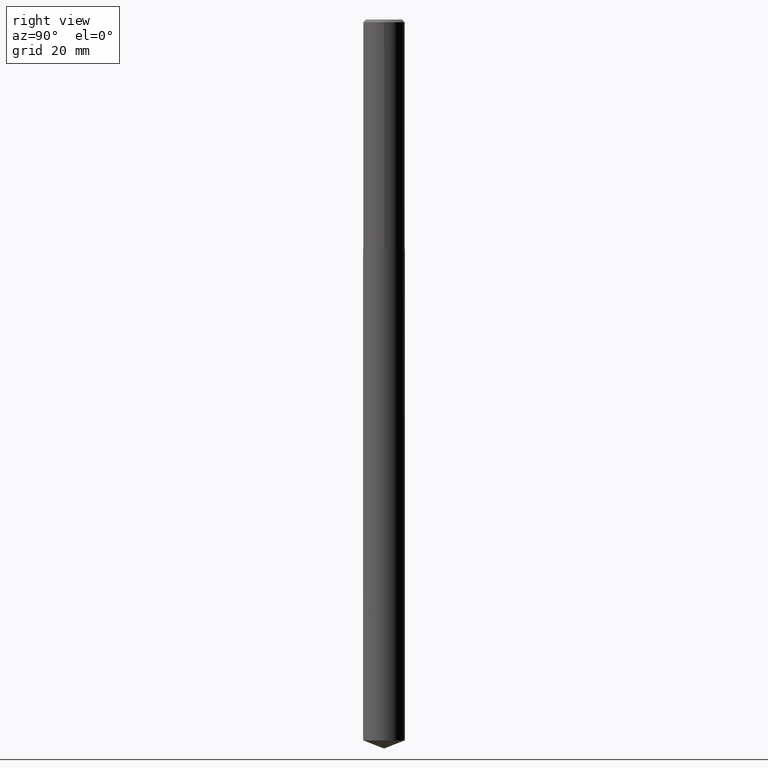
[diagram: clean part render]
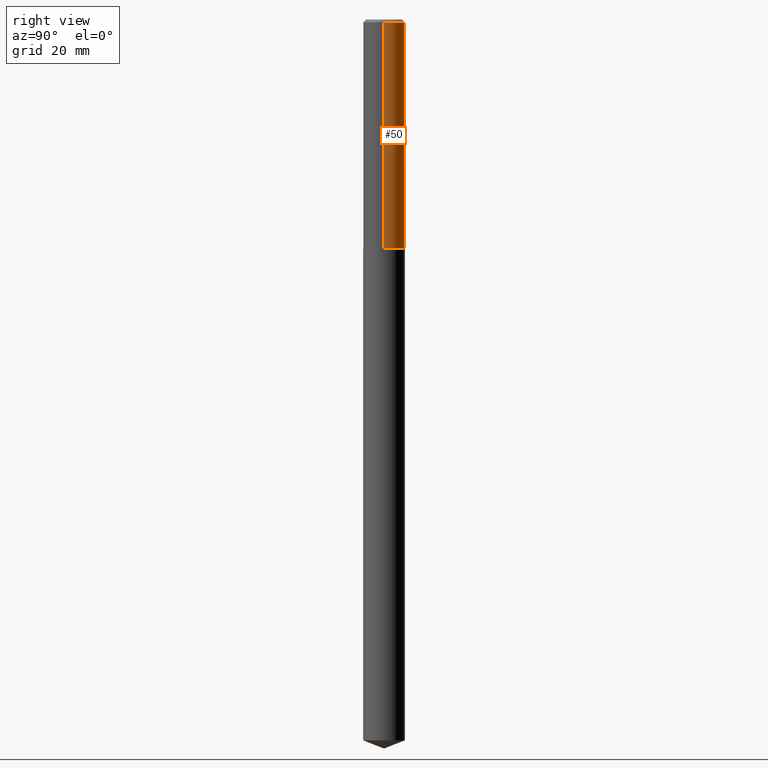
[diagram: same view with one face highlighted and labeled with its STEP entity id]
A machine part, right view. The second image highlights one B-rep face of the part: STEP entity #50.
In plain terms, the highlighted cylindrical surface (edge-blend (fillet) strip) has radius 5.9995 mm, axis along (-0, 0, 1).
Its self-contained STEP definition (entity closure, byte-faithful):
#1 = ORIENTED_EDGE ( 'NONE', *, *, #39, .F. ) ;
#7 = DIRECTION ( 'NONE',  ( 1.000000000000000000, -6.982962677686266711E-15, 0.000000000000000000 ) ) ;
#11 = EDGE_CURVE ( 'NONE', #272, #207, #186, .T. ) ;
#14 = AXIS2_PLACEMENT_3D ( 'NONE', #161, #221, #77 ) ;
#39 = EDGE_CURVE ( 'NONE', #310, #272, #223, .T. ) ;
#45 = VECTOR ( 'NONE', #193, 39.37007874015748143 ) ;
#50 = ADVANCED_FACE ( 'NONE', ( #218 ), #308, .T. ) ;
#52 = CIRCLE ( 'NONE', #361, 0.2362000000000003264 ) ;
#61 = EDGE_LOOP ( 'NONE', ( #360, #94, #242, #1 ) ) ;
#66 = VECTOR ( 'NONE', #351, 39.37007874015748143 ) ;
#77 = DIRECTION ( 'NONE',  ( 1.000000000000000000, -6.982962677686266711E-15, 4.876176775795936353E-29 ) ) ;
#79 = CARTESIAN_POINT ( 'NONE',  ( -0.2362000000000001598, 1.678301941865357775E-15, -1.161852468318209598E-29 ) ) ;
#94 = ORIENTED_EDGE ( 'NONE', *, *, #220, .T. ) ;
#103 = DIRECTION ( 'NONE',  ( -2.445468806185136597E-29, 3.491481338843145583E-15, 1.000000000000000000 ) ) ;
#110 = EDGE_CURVE ( 'NONE', #310, #265, #52, .T. ) ;
#140 = CARTESIAN_POINT ( 'NONE',  ( 0.2361999999999999933, -1.758484576308345231E-15, -0.03125000000000021511 ) ) ;
#161 = CARTESIAN_POINT ( 'NONE',  ( 0.000000000000000000, 0.000000000000000000, 0.000000000000000000 ) ) ;
#167 = CARTESIAN_POINT ( 'NONE',  ( -0.2361999999999999933, -2.911861287278254072E-15, -0.03125000000000021511 ) ) ;
#168 = AXIS2_PLACEMENT_3D ( 'NONE', #372, #305, #7 ) ;
#186 = CIRCLE ( 'NONE', #168, 0.2361999999999999933 ) ;
#193 = DIRECTION ( 'NONE',  ( -2.445468806185136877E-29, 3.491481338843145188E-15, 1.000000000000000000 ) ) ;
#202 = LINE ( 'NONE', #79, #66 ) ;
#207 = VERTEX_POINT ( 'NONE', #167 ) ;
#218 = FACE_OUTER_BOUND ( 'NONE', #61, .T. ) ;
#219 = CARTESIAN_POINT ( 'NONE',  ( 6.353572505349603403E-29, -9.071217666448377353E-15, -2.598099999999999632 ) ) ;
#220 = EDGE_CURVE ( 'NONE', #265, #207, #202, .T. ) ;
#221 = DIRECTION ( 'NONE',  ( -2.445468806185136597E-29, 3.491481338843145583E-15, 1.000000000000000000 ) ) ;
#223 = LINE ( 'NONE', #306, #45 ) ;
#242 = ORIENTED_EDGE ( 'NONE', *, *, #11, .F. ) ;
#262 = CARTESIAN_POINT ( 'NONE',  ( -0.2362000000000003264, -7.392915724583017804E-15, -2.598099999999999632 ) ) ;
#265 = VERTEX_POINT ( 'NONE', #262 ) ;
#272 = VERTEX_POINT ( 'NONE', #140 ) ;
#278 = DIRECTION ( 'NONE',  ( 1.000000000000000000, -6.982962677686263555E-15, 0.000000000000000000 ) ) ;
#305 = DIRECTION ( 'NONE',  ( -2.445468806185136597E-29, 3.491481338843145583E-15, 1.000000000000000000 ) ) ;
#306 = CARTESIAN_POINT ( 'NONE',  ( 0.2362000000000001598, -1.649375784469497314E-15, 1.151752954443000929E-29 ) ) ;
#308 = CYLINDRICAL_SURFACE ( 'NONE', #14, 0.2362000000000001598 ) ;
#310 = VERTEX_POINT ( 'NONE', #317 ) ;
#317 = CARTESIAN_POINT ( 'NONE',  ( 0.2362000000000003264, -1.072059345091787388E-14, -2.598099999999999632 ) ) ;
#351 = DIRECTION ( 'NONE',  ( -2.445468806185136877E-29, 3.491481338843145188E-15, 1.000000000000000000 ) ) ;
#360 = ORIENTED_EDGE ( 'NONE', *, *, #110, .T. ) ;
#361 = AXIS2_PLACEMENT_3D ( 'NONE', #219, #103, #278 ) ;
#372 = CARTESIAN_POINT ( 'NONE',  ( 7.642090019328603538E-31, -1.091087918388490390E-16, -0.03125000000000021511 ) ) ;